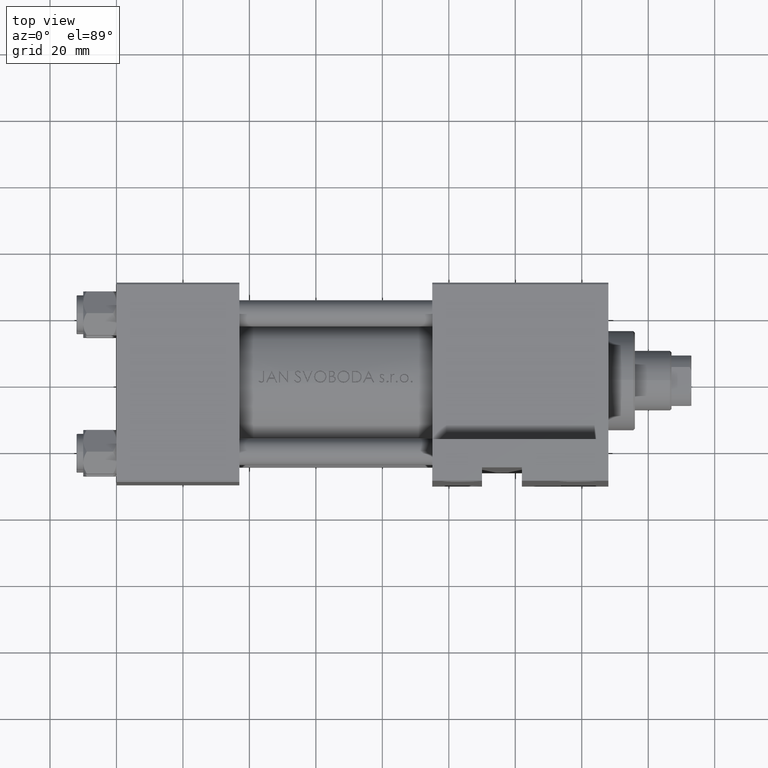
[diagram: clean part render]
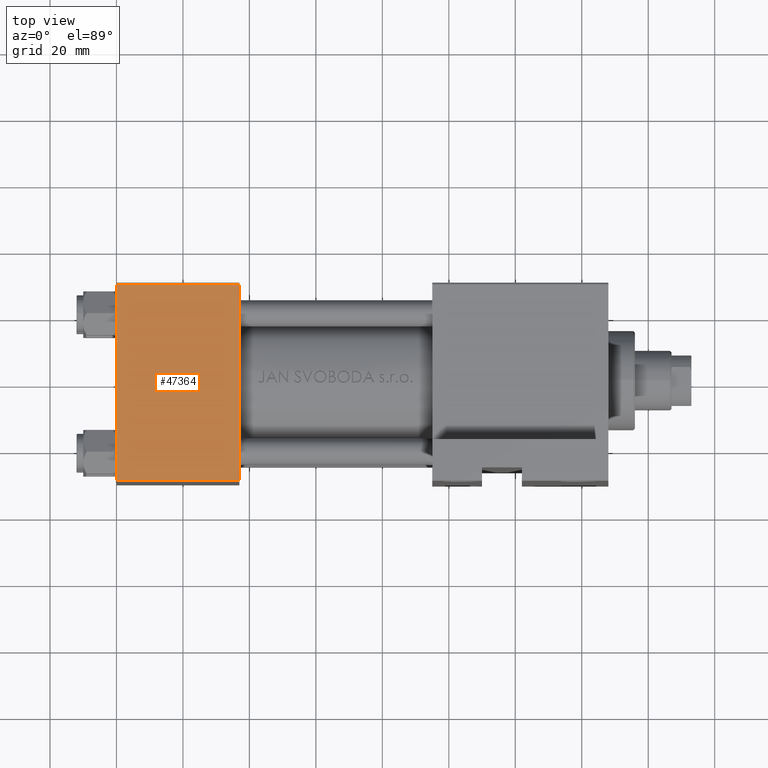
[diagram: same view with one face highlighted and labeled with its STEP entity id]
A machine part, top view. The second image highlights one B-rep face of the part: STEP entity #47364.
In plain terms, the highlighted planar face has unit normal (0, 0, -1).
Its self-contained STEP definition (entity closure, byte-faithful):
#1227 = EDGE_LOOP ( 'NONE', ( #33006, #8743, #13093, #5206 ) ) ;
#1520 = VERTEX_POINT ( 'NONE', #41819 ) ;
#2042 = DIRECTION ( 'NONE',  ( 1.000000000000000000, 0.000000000000000000, 0.000000000000000000 ) ) ;
#2167 = LINE ( 'NONE', #25058, #29251 ) ;
#2987 = VERTEX_POINT ( 'NONE', #27136 ) ;
#4421 = VERTEX_POINT ( 'NONE', #17640 ) ;
#4819 = CARTESIAN_POINT ( 'NONE',  ( 0.000000000000000000, -30.00000000000000000, 29.49999999999999289 ) ) ;
#5206 = ORIENTED_EDGE ( 'NONE', *, *, #23886, .T. ) ;
#8743 = ORIENTED_EDGE ( 'NONE', *, *, #13131, .T. ) ;
#12221 = CARTESIAN_POINT ( 'NONE',  ( 37.00000000000000000, -30.00000000000000000, 29.99999999999999289 ) ) ;
#13093 = ORIENTED_EDGE ( 'NONE', *, *, #31209, .F. ) ;
#13131 = EDGE_CURVE ( 'NONE', #4421, #2987, #23749, .T. ) ;
#13338 = EDGE_CURVE ( 'NONE', #24429, #4421, #2167, .T. ) ;
#13965 = DIRECTION ( 'NONE',  ( -0.000000000000000000, 1.000000000000000000, 0.000000000000000000 ) ) ;
#14891 = CARTESIAN_POINT ( 'NONE',  ( 37.00000000000000000, -30.00000000000000000, 29.49999999999999289 ) ) ;
#17410 = PLANE ( 'NONE',  #18774 ) ;
#17640 = CARTESIAN_POINT ( 'NONE',  ( 0.000000000000000000, -30.00000000000000000, -29.50000000000001776 ) ) ;
#18205 = DIRECTION ( 'NONE',  ( 0.000000000000000000, 0.000000000000000000, -1.000000000000000000 ) ) ;
#18774 = AXIS2_PLACEMENT_3D ( 'NONE', #47732, #13965, #35672 ) ;
#20068 = VECTOR ( 'NONE', #18205, 1000.000000000000000 ) ;
#20301 = CARTESIAN_POINT ( 'NONE',  ( 37.00000000000000000, -30.00000000000000000, -29.50000000000001776 ) ) ;
#21528 = DIRECTION ( 'NONE',  ( -1.000000000000000000, 0.000000000000000000, 0.000000000000000000 ) ) ;
#23748 = VECTOR ( 'NONE', #2042, 1000.000000000000000 ) ;
#23749 = LINE ( 'NONE', #20301, #23748 ) ;
#23886 = EDGE_CURVE ( 'NONE', #1520, #24429, #40532, .T. ) ;
#24429 = VERTEX_POINT ( 'NONE', #4819 ) ;
#25058 = CARTESIAN_POINT ( 'NONE',  ( 0.000000000000000000, -30.00000000000000000, 29.99999999999999289 ) ) ;
#25864 = VECTOR ( 'NONE', #21528, 1000.000000000000000 ) ;
#27136 = CARTESIAN_POINT ( 'NONE',  ( 37.00000000000000000, -30.00000000000000000, -29.50000000000001776 ) ) ;
#29251 = VECTOR ( 'NONE', #47282, 1000.000000000000000 ) ;
#31209 = EDGE_CURVE ( 'NONE', #1520, #2987, #48041, .T. ) ;
#33006 = ORIENTED_EDGE ( 'NONE', *, *, #13338, .T. ) ;
#34468 = FACE_OUTER_BOUND ( 'NONE', #1227, .T. ) ;
#35672 = DIRECTION ( 'NONE',  ( 0.000000000000000000, -0.000000000000000000, 1.000000000000000000 ) ) ;
#40532 = LINE ( 'NONE', #14891, #25864 ) ;
#41819 = CARTESIAN_POINT ( 'NONE',  ( 37.00000000000000000, -30.00000000000000000, 29.49999999999999289 ) ) ;
#47282 = DIRECTION ( 'NONE',  ( 0.000000000000000000, 0.000000000000000000, -1.000000000000000000 ) ) ;
#47364 = ADVANCED_FACE ( 'NONE', ( #34468 ), #17410, .F. ) ;
#47732 = CARTESIAN_POINT ( 'NONE',  ( 37.00000000000000000, -30.00000000000000000, 29.99999999999999289 ) ) ;
#48041 = LINE ( 'NONE', #12221, #20068 ) ;